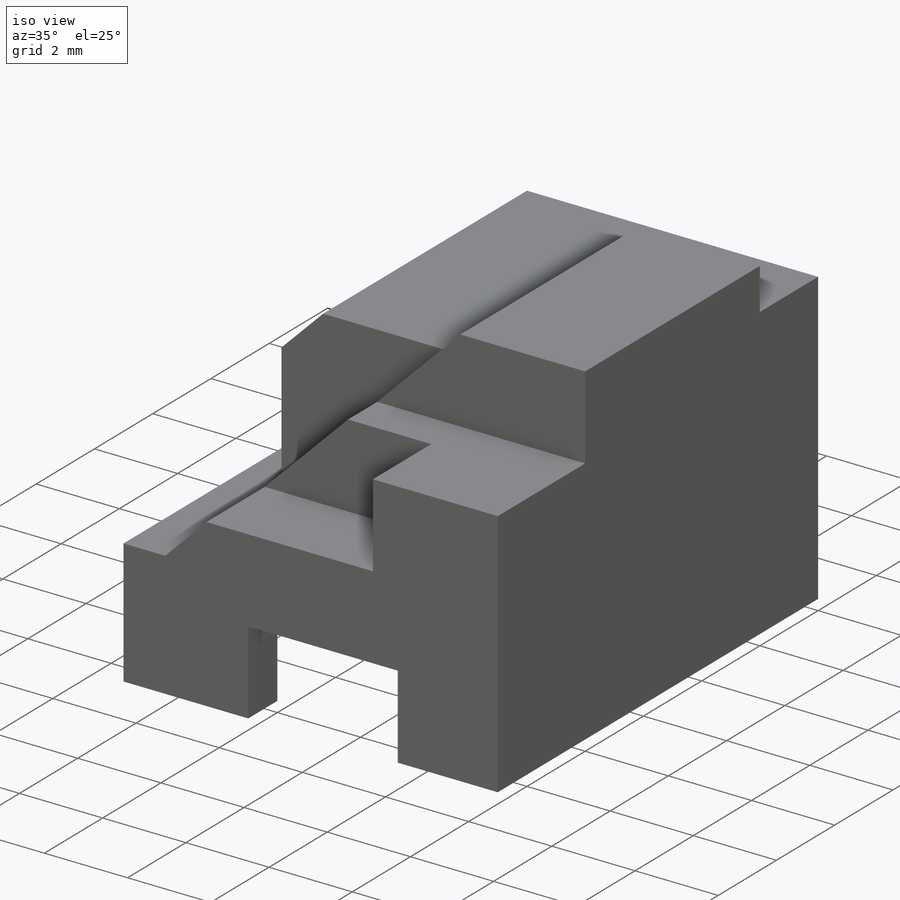
[diagram: iso view]
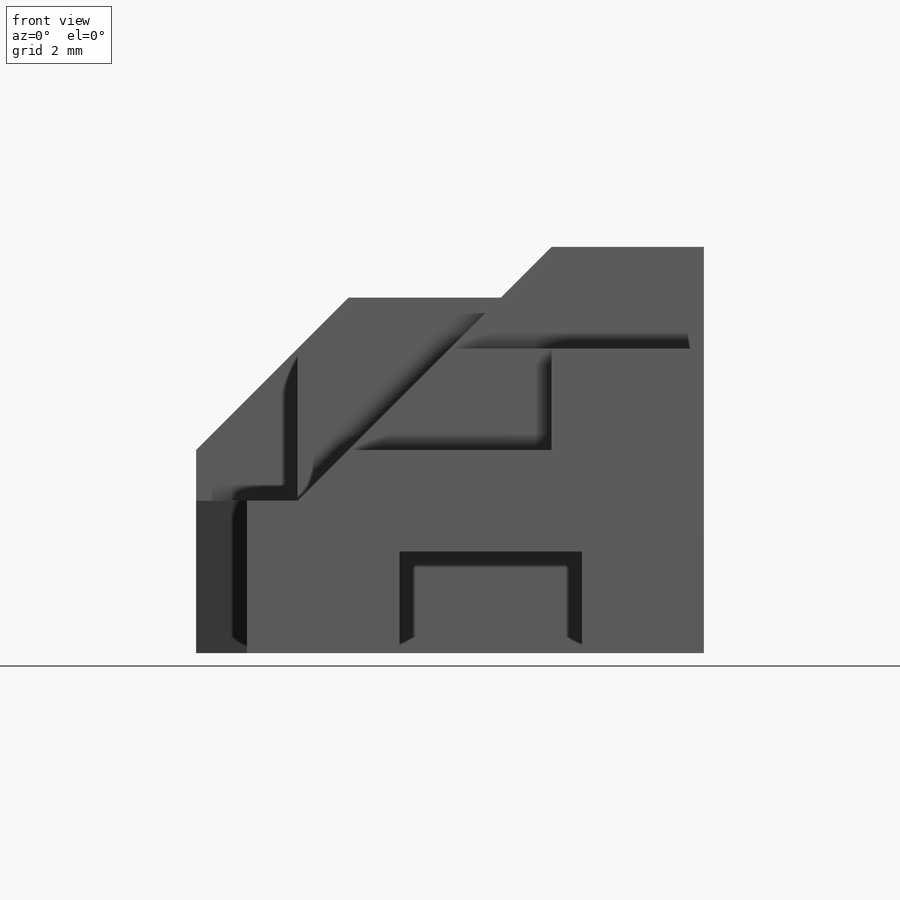
[diagram: front view]
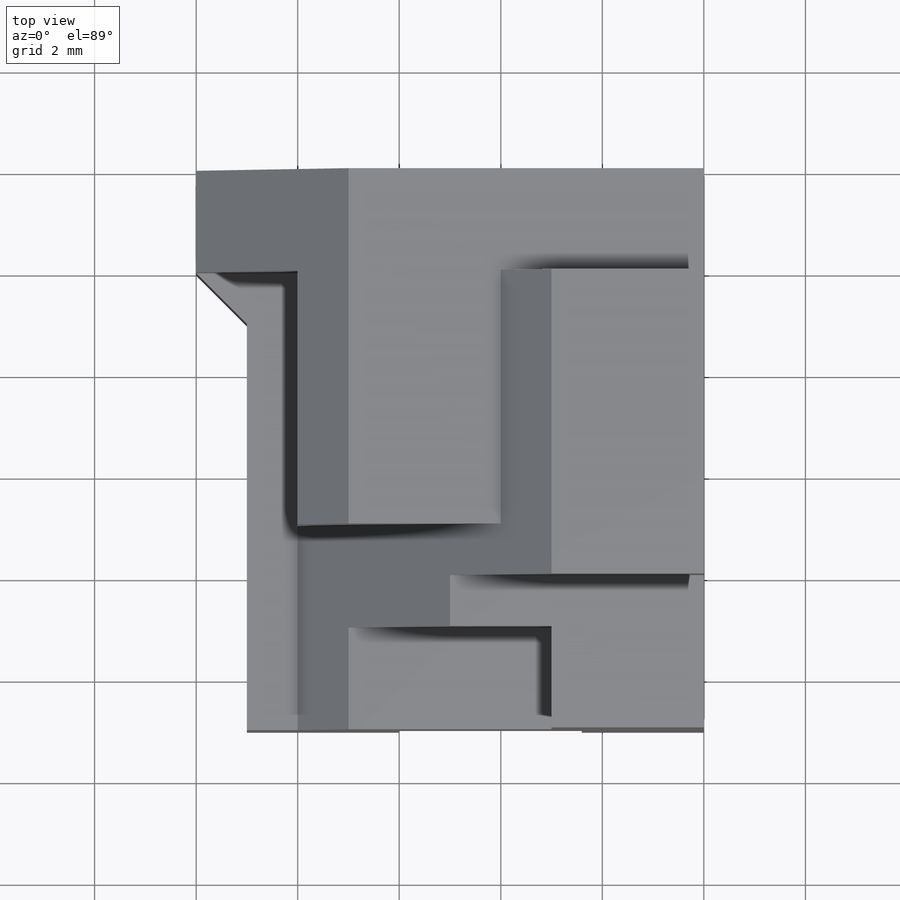
[diagram: top view]
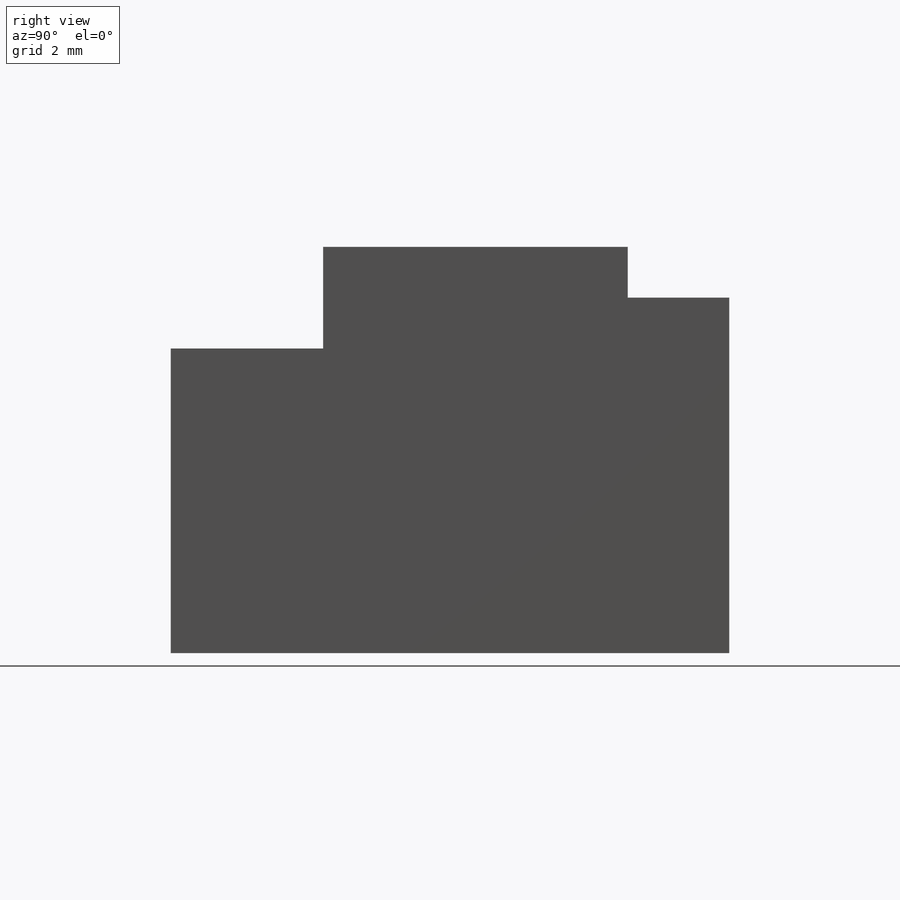
[diagram: right view]
SOLIDWORKS PART (.sldprt)
format: sldprt  version: not decoded by parser v0  size: 281,600 bytes
history: native  units: mm
features: sketch x9, cut_extrude x8, material x1, extrude x1 (+13 scaffold rows collapsed)
feature tree (32):
  scaffold x13  (default folders/planes/origin — collapsed)
  material  "Material <not specified>"
  sketch  "Sketch1"  dims[D1=8.0mm D2=10.0mm]
  extrude  "Boss-Extrude1"  Depth=11mm
  sketch  "Sketch2"  dims[D1=1.0mm D2=2.0mm D3=3.0mm]
  cut_extrude  "Cut-Extrude1"  Depth=11mm
  sketch  "Sketch3"  dims[D1=3.0mm D2=2.0mm D3=4.0mm]
  cut_extrude  "Cut-Extrude2"  Depth=2mm
  sketch  "Sketch4"  dims[D1=2.0mm D2=3.0mm D3=1.0mm D4=4.0mm]
  cut_extrude  "Cut-Extrude3"  Depth=4mm
  sketch  "Sketch5"  dims[c1.D1=~4.198988mm c2.D1=0.0deg c3.D1=1.0mm]
  cut_extrude  "Cut-Extrude4"  Depth=5mm
  sketch  "Sketch6"
  cut_extrude  "Cut-Extrude5"  Depth=9mm
  sketch  "Sketch7"  dims[D1=3.0mm D2=3.0mm]
  cut_extrude  "Cut-Extrude6"  Depth=7mm
  sketch  "Sketch9"  dims[D1=1.0mm D2=1.0mm D3=1.0mm]
  cut_extrude  "Cut-Extrude7"  Depth=7mm
  sketch  "Sketch10"  dims[c1.D1=1.0mm c1.D2=1.0mm c1.D3=3.0mm c1.D4=1.0mm c1.D5=~1.414214mm c2.D5=180.0deg]
  cut_extrude  "Cut-Extrude8"  Depth=2mm
decode coverage: 17 of 18 modeling features carry decoded parameters
note: ~ marks probable driven/reference dimensions
note: suppression state not decoded; provenance and decode notes live in map.json
